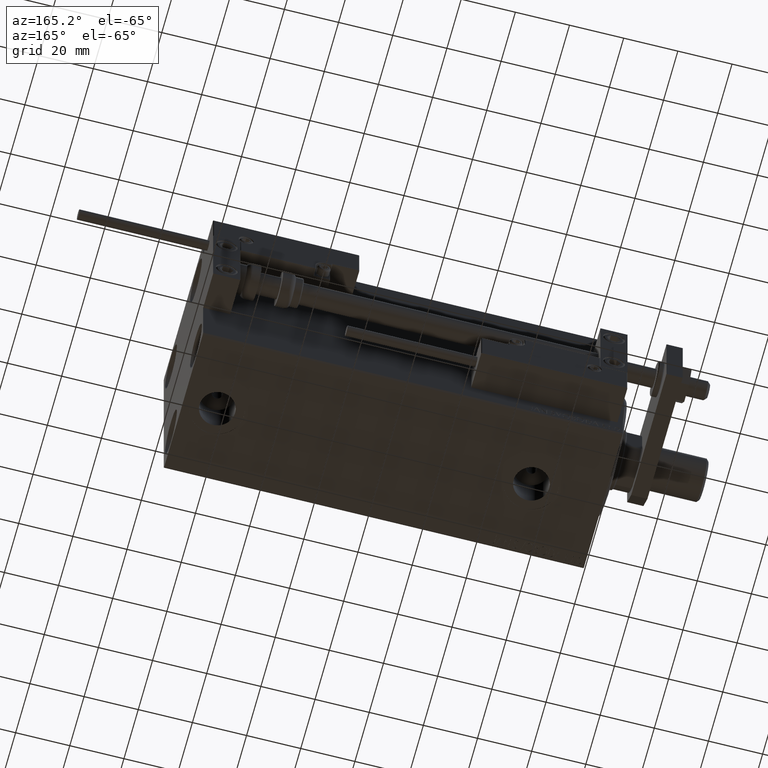
[diagram: clean part render]
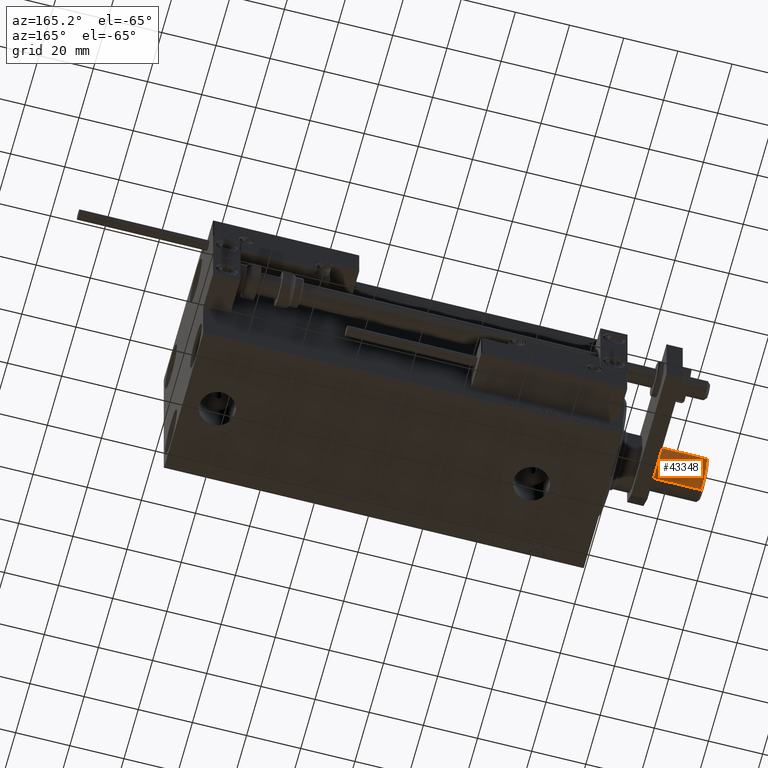
[diagram: same view with one face highlighted and labeled with its STEP entity id]
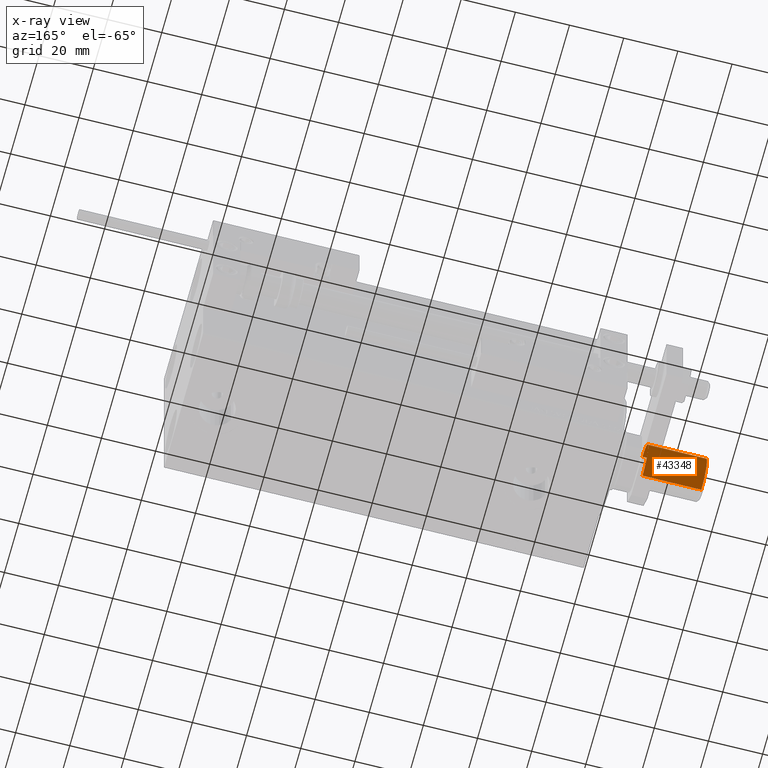
[diagram: x-ray of the same camera — body ghosted, the highlighted face saturated]
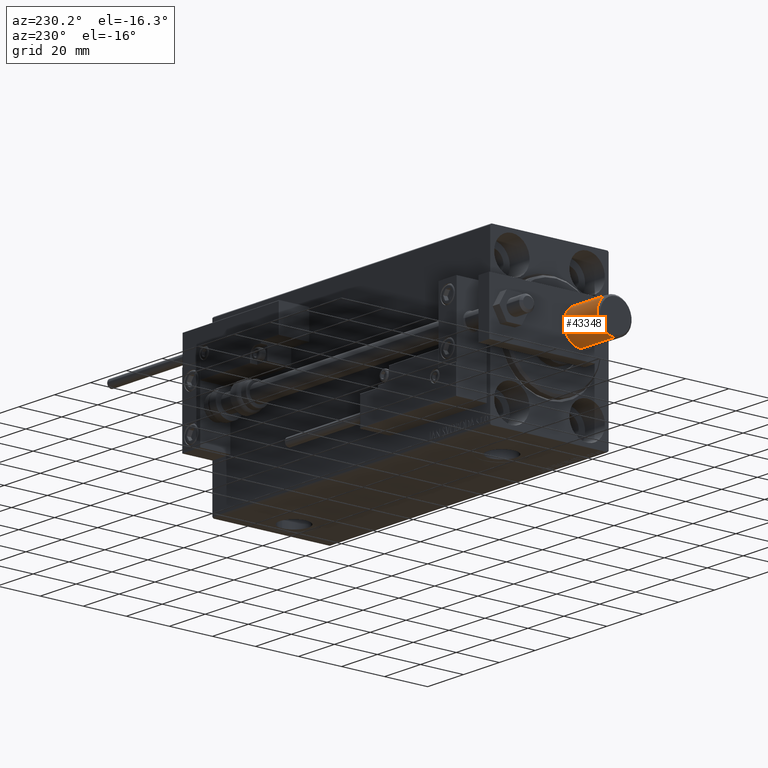
[diagram: same view with one face highlighted and labeled with its STEP entity id]
A machine part, auxiliary view. The second image highlights one B-rep face of the part: STEP entity #43348.
The next image is the same camera in x-ray: the body ghosted, the highlighted face saturated — about 0% of this face is hidden behind the body in this view.
A second angle (auxiliary view) of the same face is appended — the face is thin or edge-on in the first view.
In plain terms, the highlighted cylindrical surface (edge-blend (fillet) strip) has radius 8 mm, axis along (-1, -0, 0).
Its self-contained STEP definition (entity closure, byte-faithful):
#426 = EDGE_CURVE ( 'NONE', #1850, #37153, #10312, .T. ) ;
#854 = EDGE_LOOP ( 'NONE', ( #49582, #23348, #6033, #11819 ) ) ;
#1850 = VERTEX_POINT ( 'NONE', #22416 ) ;
#4775 = EDGE_CURVE ( 'NONE', #11614, #12843, #26735, .T. ) ;
#4997 = CARTESIAN_POINT ( 'NONE',  ( 8.000000000000000000, 9.797174393178823685E-16, 22.50000000000000000 ) ) ;
#6033 = ORIENTED_EDGE ( 'NONE', *, *, #4775, .T. ) ;
#6784 = DIRECTION ( 'NONE',  ( -0.000000000000000000, -0.000000000000000000, -1.000000000000000000 ) ) ;
#7976 = VECTOR ( 'NONE', #36560, 1000.000000000000000 ) ;
#10312 = CIRCLE ( 'NONE', #23434, 8.000000000000000000 ) ;
#10625 = CARTESIAN_POINT ( 'NONE',  ( -8.000000000000000000, 0.000000000000000000, 22.50000000000000000 ) ) ;
#11614 = VERTEX_POINT ( 'NONE', #16369 ) ;
#11819 = ORIENTED_EDGE ( 'NONE', *, *, #25471, .F. ) ;
#12843 = VERTEX_POINT ( 'NONE', #15307 ) ;
#13457 = CARTESIAN_POINT ( 'NONE',  ( 0.000000000000000000, 0.000000000000000000, 22.50000000000000000 ) ) ;
#15307 = CARTESIAN_POINT ( 'NONE',  ( -8.000000000000000000, 0.000000000000000000, 0.8000000000000160316 ) ) ;
#16369 = CARTESIAN_POINT ( 'NONE',  ( 8.000000000000000000, 9.797174393178823685E-16, 0.8000000000000160316 ) ) ;
#16774 = LINE ( 'NONE', #4997, #7976 ) ;
#17720 = AXIS2_PLACEMENT_3D ( 'NONE', #43638, #24658, #47503 ) ;
#18303 = LINE ( 'NONE', #10625, #45488 ) ;
#18304 = DIRECTION ( 'NONE',  ( -1.000000000000000000, 0.000000000000000000, 0.000000000000000000 ) ) ;
#21936 = FACE_OUTER_BOUND ( 'NONE', #854, .T. ) ;
#22416 = CARTESIAN_POINT ( 'NONE',  ( 8.000000000000000000, 9.797174393178823685E-16, 22.50000000000000000 ) ) ;
#23348 = ORIENTED_EDGE ( 'NONE', *, *, #34744, .T. ) ;
#23434 = AXIS2_PLACEMENT_3D ( 'NONE', #40613, #32943, #37047 ) ;
#24658 = DIRECTION ( 'NONE',  ( -0.000000000000000000, -0.000000000000000000, 1.000000000000000000 ) ) ;
#25471 = EDGE_CURVE ( 'NONE', #37153, #12843, #18303, .T. ) ;
#26735 = CIRCLE ( 'NONE', #17720, 8.000000000000000000 ) ;
#32943 = DIRECTION ( 'NONE',  ( 0.000000000000000000, 0.000000000000000000, 1.000000000000000000 ) ) ;
#34245 = DIRECTION ( 'NONE',  ( -0.000000000000000000, -0.000000000000000000, -1.000000000000000000 ) ) ;
#34744 = EDGE_CURVE ( 'NONE', #1850, #11614, #16774, .T. ) ;
#35759 = CARTESIAN_POINT ( 'NONE',  ( -8.000000000000000000, 0.000000000000000000, 22.50000000000000000 ) ) ;
#36560 = DIRECTION ( 'NONE',  ( -0.000000000000000000, -0.000000000000000000, -1.000000000000000000 ) ) ;
#37047 = DIRECTION ( 'NONE',  ( 1.000000000000000000, 0.000000000000000000, 0.000000000000000000 ) ) ;
#37153 = VERTEX_POINT ( 'NONE', #35759 ) ;
#37587 = CYLINDRICAL_SURFACE ( 'NONE', #41478, 8.000000000000000000 ) ;
#40613 = CARTESIAN_POINT ( 'NONE',  ( 0.000000000000000000, 0.000000000000000000, 22.50000000000000000 ) ) ;
#41478 = AXIS2_PLACEMENT_3D ( 'NONE', #13457, #6784, #18304 ) ;
#43348 = ADVANCED_FACE ( 'NONE', ( #21936 ), #37587, .T. ) ;
#43638 = CARTESIAN_POINT ( 'NONE',  ( 0.000000000000000000, 0.000000000000000000, 0.8000000000000160316 ) ) ;
#45488 = VECTOR ( 'NONE', #34245, 1000.000000000000000 ) ;
#47503 = DIRECTION ( 'NONE',  ( 1.000000000000000000, 0.000000000000000000, 0.000000000000000000 ) ) ;
#49582 = ORIENTED_EDGE ( 'NONE', *, *, #426, .F. ) ;